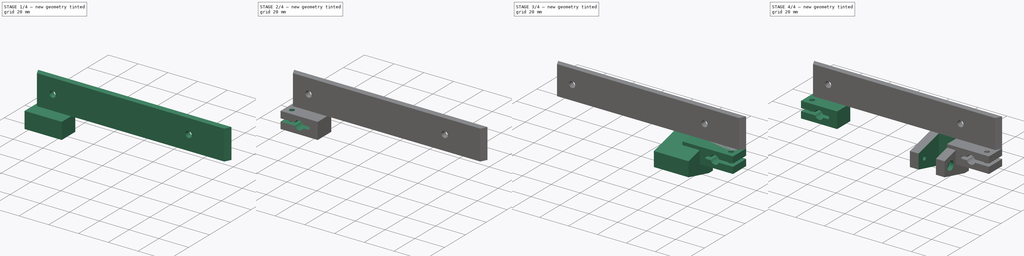
[diagram: build sequence overview — one tinted view per stage of 4, left to right]
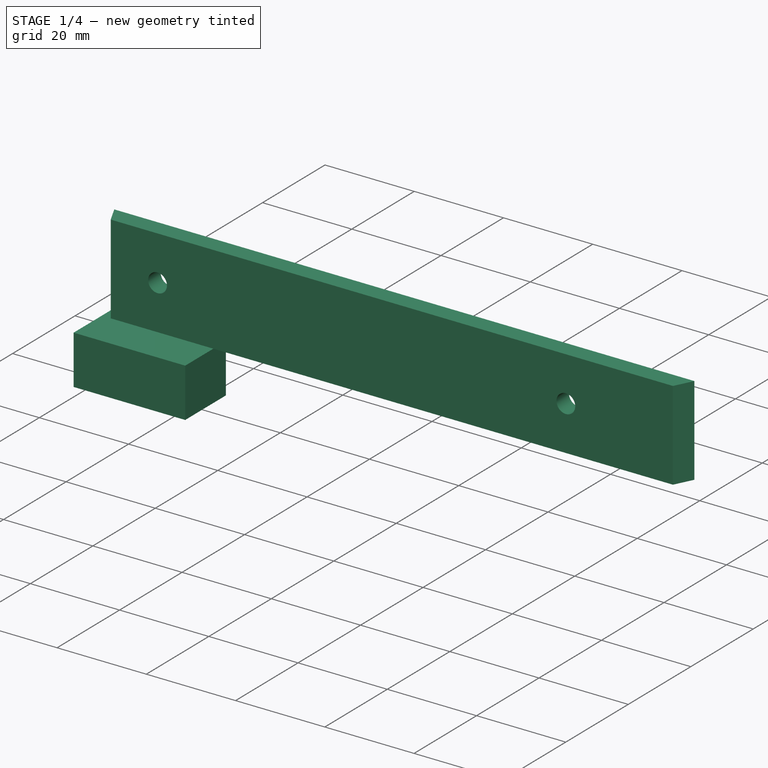
[diagram: stage 1 of 4 — iso view after this stage's code; geometry added in this stage tinted green]
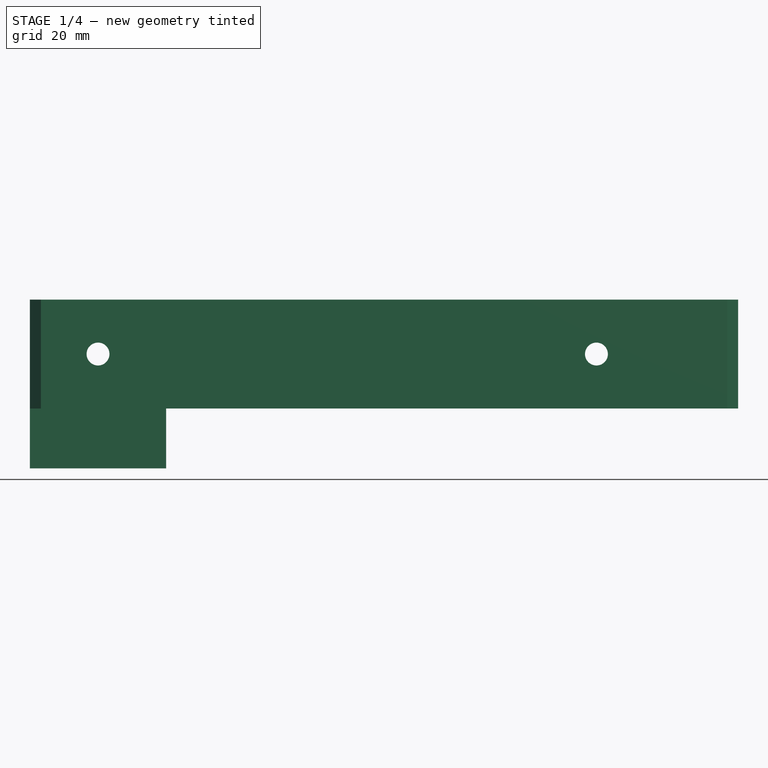
[diagram: stage 1 of 4 — front view after this stage's code; geometry added in this stage tinted green]
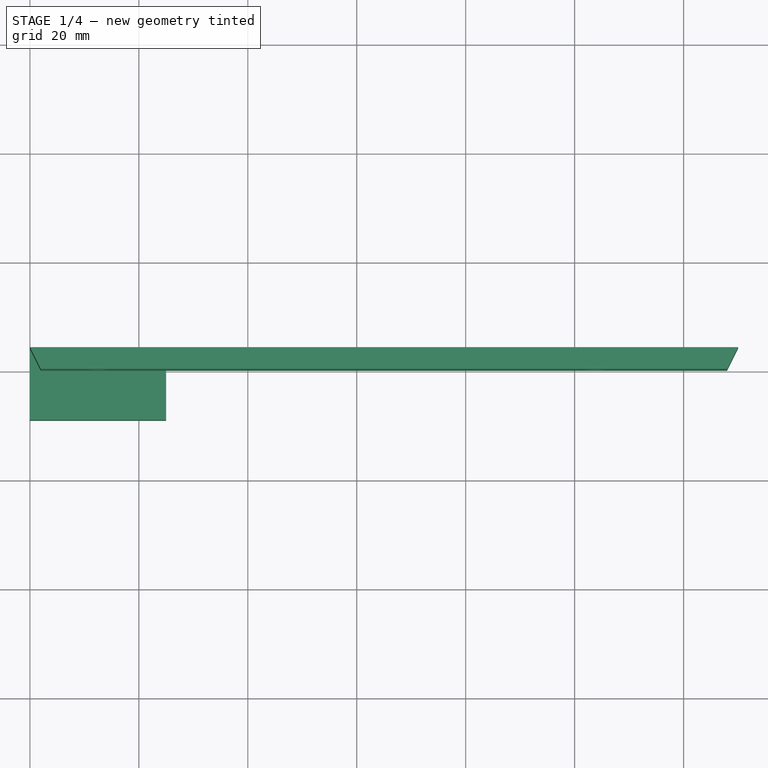
[diagram: stage 1 of 4 — top view after this stage's code; geometry added in this stage tinted green]
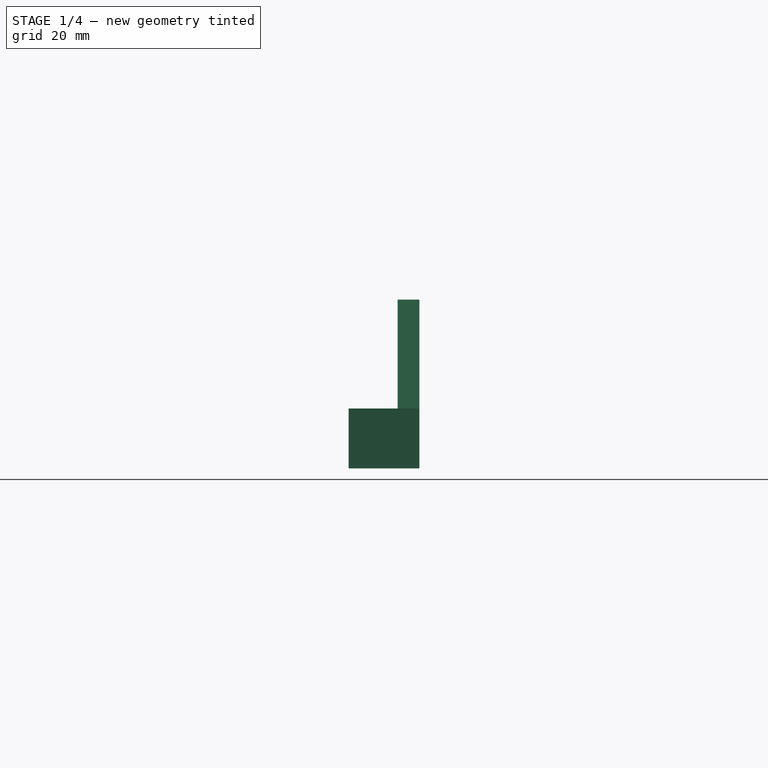
[diagram: stage 1 of 4 — right view after this stage's code; geometry added in this stage tinted green]
FCSTD DOCUMENT  (FreeCAD 0.14R3692 (Git))
Label: y-idler
License: CC-BY 3.0
LicenseURL: http://creativecommons.org/licenses/by/3.0/
objects: Sketcher::SketchObject×10, PartDesign::Pocket×8, Part::Feature×4, Part::Box×2, PartDesign::Pad×2, Part::Mirroring×1, Part::MultiFuse×1, App::DocumentObjectGroup×1
note: 38 computed .brp shape members not serialized (recipe doc carries the construction recipe); baked Part::Feature solids carry a one-line shape summary decoded from their .brp

FEATURE [Part::Box] Box  label="body-cube"
  Height = 20
  Length = 130
  Width = 4
FEATURE [Part::Box] Box001  label="smooth-rod-y-left-holder-cube"
  Height = 11
  Length = 25
  Placement = pos=(0,-9,-11) rot=(0,0,1;0rad)
  Width = 13
FEATURE [Sketcher::SketchObject] Sketch008  label="slot-front-top-screw-hole-sketch"
  Placement = pos=(0,0,0) rot=(1,0,0;1.5708rad)
  Support = -> Box [Face3]
  sketch-geometry (2):
    g0: Circle CenterX=12.5 CenterY=10 CenterZ=0 NormalX=0 NormalY=0 NormalZ=1 Radius=2.1
    g1: Circle CenterX=104 CenterY=10 CenterZ=0 NormalX=0 NormalY=0 NormalZ=1 Radius=2.1
  constraints (6):
    c: DistanceY(g-1,g0) = 10
    c: DistanceX(g-1,g0) = 12.5
    c: Radius(g0) = 2.1
    c: DistanceY(g-1,g1) = 10
    c: DistanceX(g-1,g1) = 104
    c: Radius(g1) = 2.1
FEATURE [PartDesign::Pocket] Pocket006  label="slot-front-top-screw-hole-pocket"
  Length = 4
  Sketch = -> Sketch008
  Type = 0
FEATURE [Sketcher::SketchObject] Sketch009  label="slot-front-top-chamfer-sketch"
  Placement = pos=(0,0,20) rot=(0,0,1;0rad)
  Support = -> Pocket006 [Face3]
  sketch-geometry (6):
    g0: LineSegment StartX=0 StartY=4 StartZ=0 EndX=2 EndY=0 EndZ=0
    g1: LineSegment StartX=2 StartY=0 StartZ=0 EndX=0 EndY=0 EndZ=0
    g2: LineSegment StartX=0 StartY=0 StartZ=0 EndX=0 EndY=4 EndZ=0
    g3: LineSegment StartX=128 StartY=0 StartZ=0 EndX=130 EndY=4 EndZ=0
    g4: LineSegment StartX=130 StartY=4 StartZ=0 EndX=130 EndY=0 EndZ=0
    g5: LineSegment StartX=130 StartY=0 StartZ=0 EndX=128 EndY=0 EndZ=0
  constraints (17):
    c: Coincident(g0,g1)
    c: Coincident(g1,g2)
    c: Coincident(g2,g0)
    c: Vertical(g2)
    c: Horizontal(g1)
    c: Coincident(g1,g-1)
    c: DistanceY(g2) = 4
    c: DistanceX(g1) = -2
    c: Coincident(g3,g4)
    c: Coincident(g4,g5)
    c: Coincident(g3,g5)
    c: Horizontal(g5)
    c: Vertical(g4)
    c: PointOnObject(g4,g-1)
    c: DistanceX(g-1,g4) = 130
    c: Equal(g5,g1)
    c: Equal(g2,g4)
FEATURE [PartDesign::Pocket] Pocket007  label="slot-front-top-chamfer-pocket"
  Length = 20
  Sketch = -> Sketch009
  Type = 0
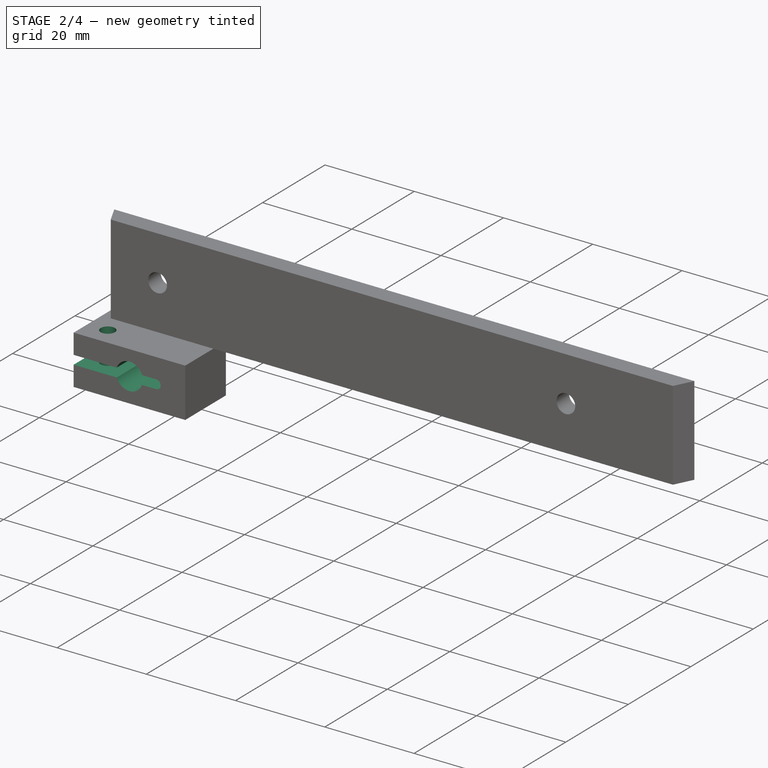
[diagram: stage 2 of 4 — iso view after this stage's code; geometry added in this stage tinted green]
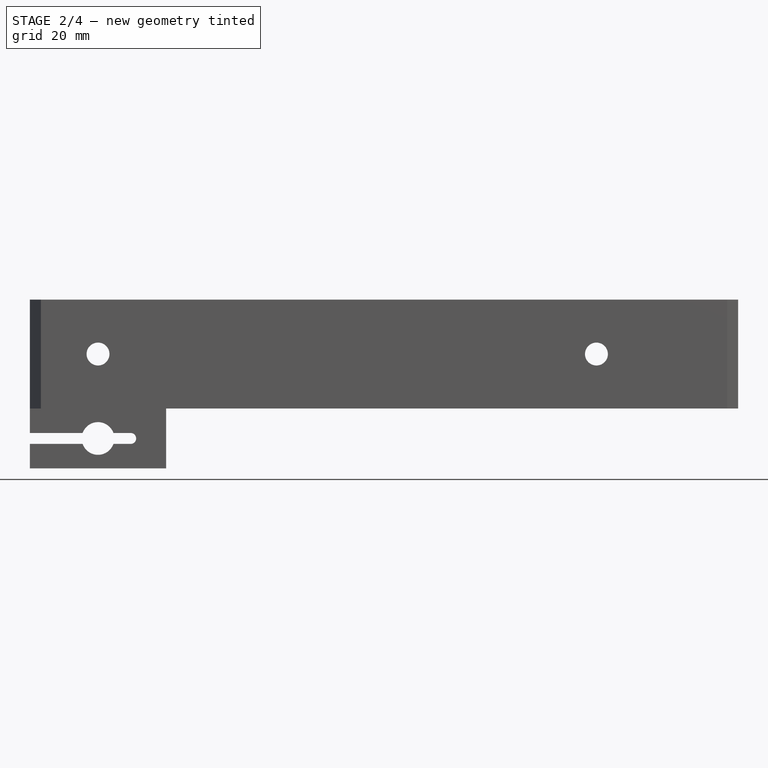
[diagram: stage 2 of 4 — front view after this stage's code; geometry added in this stage tinted green]
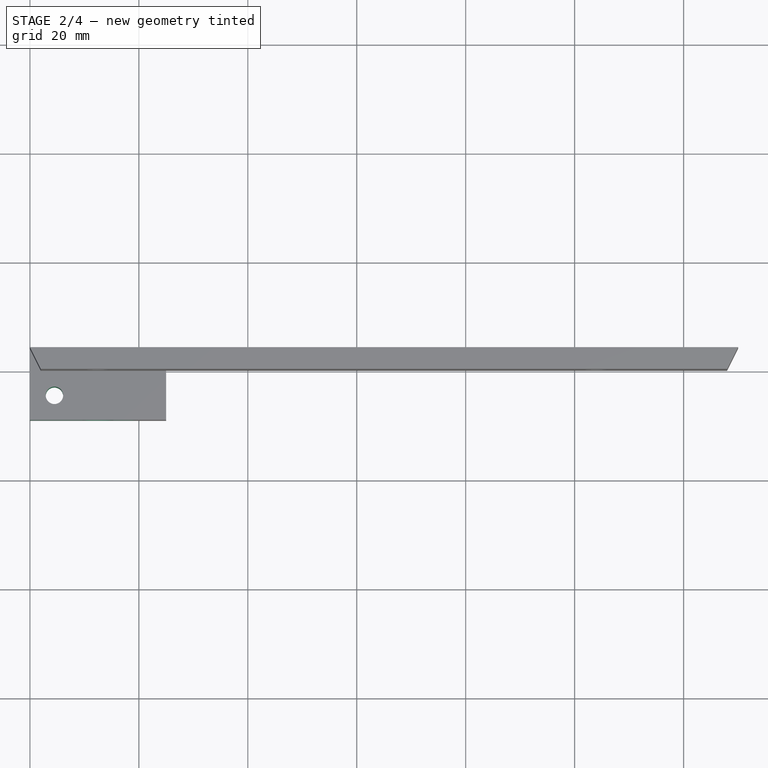
[diagram: stage 2 of 4 — top view after this stage's code; geometry added in this stage tinted green]
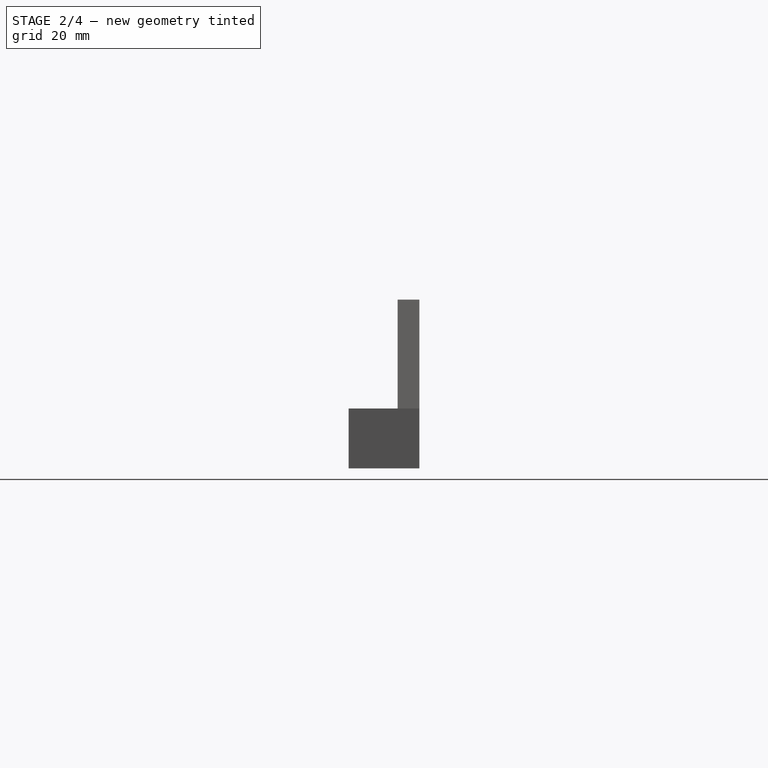
[diagram: stage 2 of 4 — right view after this stage's code; geometry added in this stage tinted green]
FEATURE [Sketcher::SketchObject] Sketch  label="smooth-rod-y-left-hole-sketch"
  Placement = pos=(0,-9,-11) rot=(1,0,0;1.5708rad)
  Support = -> Box001 [Face3]
  sketch-geometry (1):
    g0: Circle CenterX=12.5 CenterY=5.5 CenterZ=0 NormalX=0 NormalY=0 NormalZ=1 Radius=3
  constraints (3):
    c: Radius(g0) = 3
    c: DistanceX(g-1,g0) = 12.5
    c: DistanceY(g-1,g0) = 5.5
FEATURE [PartDesign::Pocket] Pocket  label="smooth-rod-y-left-hole-pocket"
  Length = 5
  Placement = pos=(0,-9,-11) rot=(0,0,1;0rad)
  Sketch = -> Sketch
  Type = 1
FEATURE [Sketcher::SketchObject] Sketch001  label="smooth-rod-y-left-groove-sketch"
  Placement = pos=(0,-9,-11) rot=(1,0,0;1.5708rad)
  Support = -> Pocket [Face2]
  sketch-geometry (4):
    g0: ArcOfCircle CenterX=0 CenterY=5.5 CenterZ=0 NormalX=0 NormalY=0 NormalZ=1 Radius=1 StartAngle=1.57081 EndAngle=4.71239
    g1: ArcOfCircle CenterX=18.5 CenterY=5.5 CenterZ=0 NormalX=0 NormalY=0 NormalZ=1 Radius=1 StartAngle=4.71239 EndAngle=7.85399
    g2: LineSegment StartX=-1.7816e-08 StartY=4.5 StartZ=0 EndX=18.5 EndY=4.5 EndZ=0
    g3: LineSegment StartX=-1.02577e-05 StartY=6.5 StartZ=0 EndX=18.5 EndY=6.5 EndZ=0
  constraints (14):
    c: Tangent(g0,g2)
    c: Tangent(g0,g3)
    c: Tangent(g1,g2)
    c: Tangent(g1,g3)
    c: Coincident(g0,g3)
    c: Coincident(g0,g2)
    c: Coincident(g2,g1)
    c: Coincident(g3,g1)
    c: Horizontal(g2)
    c: Equal(g0,g1)
    c: Radius(g1) = 1
    c: DistanceX(g2) = 18.5
    c: PointOnObject(g0,g-2)
    c: DistanceY(g-1,g0) = 5.5
FEATURE [PartDesign::Pocket] Pocket001  label="smooth-rod-y-left-groove-pocket"
  Length = 5
  Placement = pos=(0,-9,-11) rot=(0,0,1;0rad)
  Sketch = -> Sketch001
  Type = 1
FEATURE [Sketcher::SketchObject] Sketch002  label="smooth-rod-y-left-screw-hole-sketch"
  Placement = pos=(0,-9,0) rot=(0,0,1;0rad)
  Support = -> Pocket001 [Face1]
  sketch-geometry (1):
    g0: Circle CenterX=4.5 CenterY=4.5 CenterZ=0 NormalX=0 NormalY=0 NormalZ=1 Radius=1.6
  constraints (3):
    c: DistanceY(g-1,g0) = 4.5
    c: DistanceX(g-1,g0) = 4.5
    c: Radius(g0) = 1.6
FEATURE [PartDesign::Pocket] Pocket002  label="smooth-rod-y-left-screw-hole-pocket"
  Length = 5
  Placement = pos=(0,-9,-11) rot=(0,0,1;0rad)
  Sketch = -> Sketch002
  Type = 1
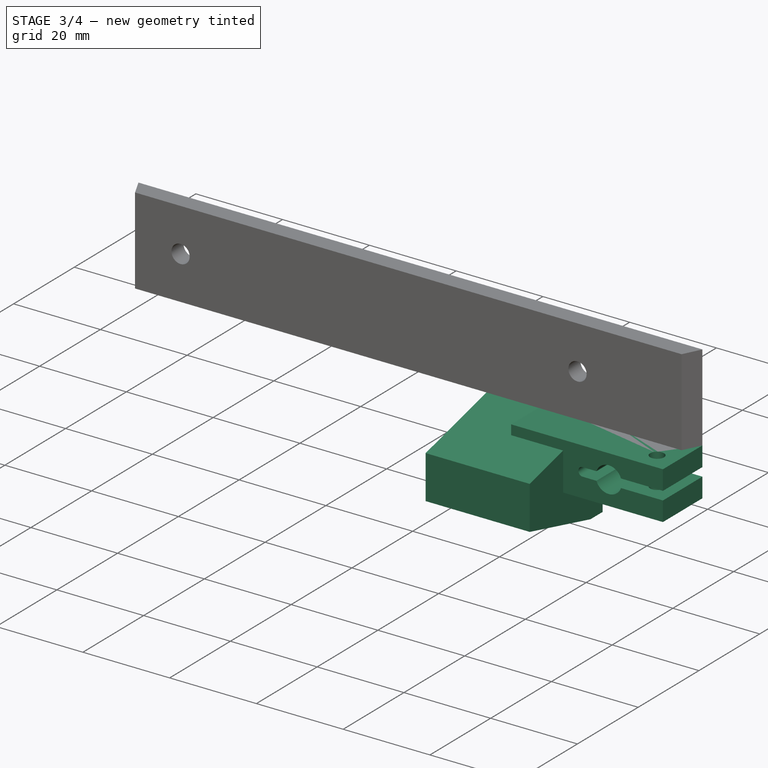
[diagram: stage 3 of 4 — iso view after this stage's code; geometry added in this stage tinted green]
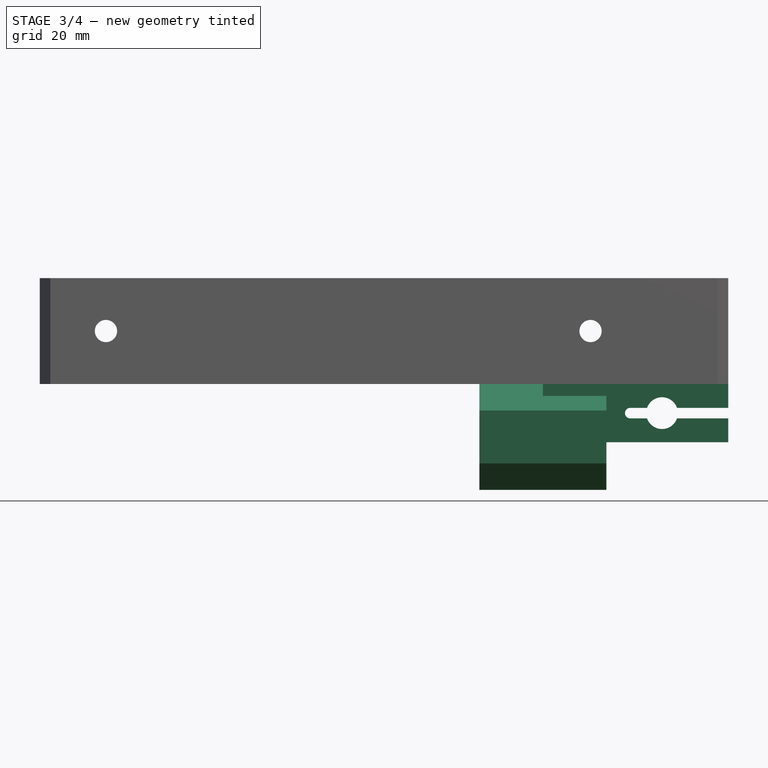
[diagram: stage 3 of 4 — front view after this stage's code; geometry added in this stage tinted green]
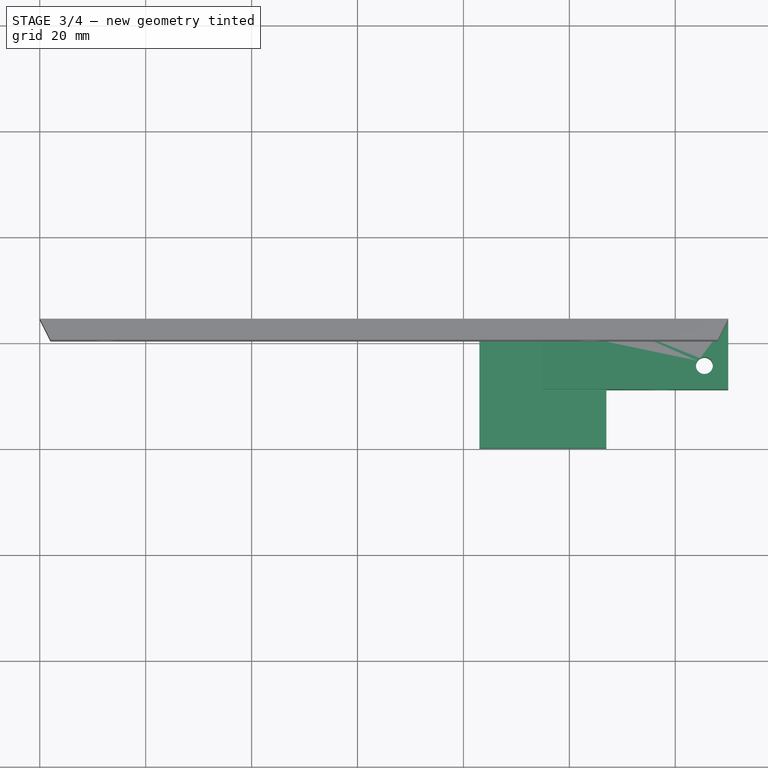
[diagram: stage 3 of 4 — top view after this stage's code; geometry added in this stage tinted green]
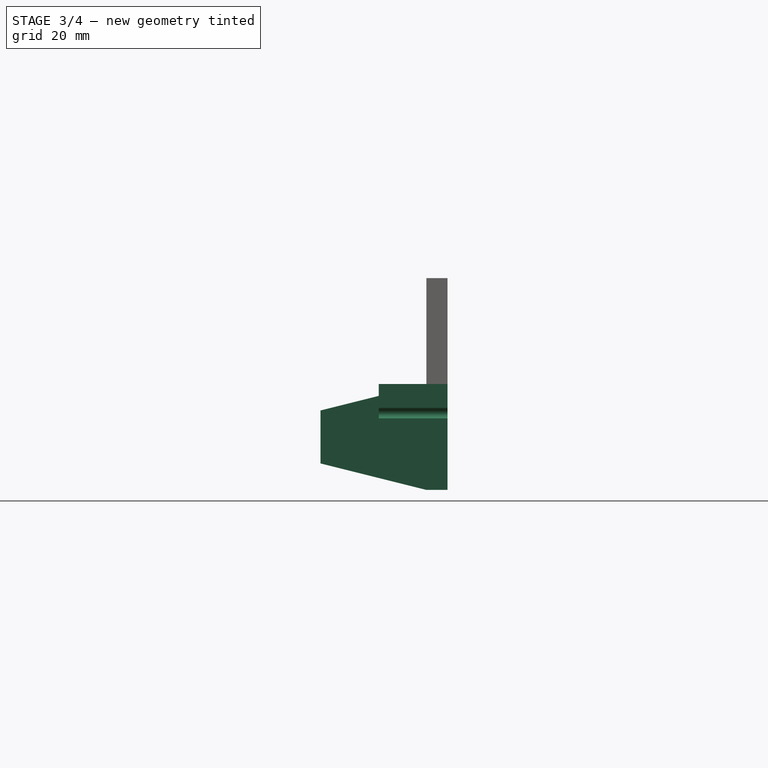
[diagram: stage 3 of 4 — right view after this stage's code; geometry added in this stage tinted green]
FEATURE [Part::Mirroring] Part__Mirroring  label="smooth-rod-y-right-holder"
  Base = (65,0,0)
  Normal = (1,0,0)
  Source = -> Pocket002
FEATURE [Sketcher::SketchObject] Sketch003  label="smooth-rod-y-right-holder-increase-sketch"
  Placement = pos=(105,0,0) rot=(0.57735,-0.57735,-0.57735;2.0944rad)
  Support = -> Part__Mirroring [Face6]
  sketch-geometry (4):
    g0: LineSegment StartX=-4 StartY=0 StartZ=0 EndX=9 EndY=0 EndZ=0
    g1: LineSegment StartX=9 StartY=0 StartZ=0 EndX=9 EndY=-11 EndZ=0
    g2: LineSegment StartX=9 StartY=-11 StartZ=0 EndX=-4 EndY=-11 EndZ=0
    g3: LineSegment StartX=-4 StartY=-11 StartZ=0 EndX=-4 EndY=0 EndZ=0
  constraints (12):
    c: Coincident(g0,g1)
    c: Coincident(g1,g2)
    c: Coincident(g2,g3)
    c: Coincident(g3,g0)
    c: Horizontal(g0)
    c: Horizontal(g2)
    c: Vertical(g1)
    c: Vertical(g3)
    c: DistanceY(g3) = 11
    c: DistanceX(g2) = -13
    c: PointOnObject(g-1,g0)
    c: DistanceX(g-1,g0) = -4
FEATURE [PartDesign::Pad] Pad  label="smooth-rod-y-right-holder-increase-pad"
  Length = 10
  Length2 = 100
  Sketch = -> Sketch003
  Type = 0
FEATURE [Sketcher::SketchObject] Sketch004  label="idler-sketch"
  Placement = pos=(95,0,0) rot=(0.57735,-0.57735,-0.57735;2.0944rad)
  Support = -> Pad [Face18]
  sketch-geometry (6):
    g0: LineSegment StartX=-4 StartY=0 StartZ=0 EndX=-4 EndY=-20 EndZ=0
    g1: LineSegment StartX=-4 StartY=-20 StartZ=0 EndX=0 EndY=-20 EndZ=0
    g2: LineSegment StartX=0 StartY=-20 StartZ=0 EndX=20 EndY=-15 EndZ=0
    g3: LineSegment StartX=20 StartY=-15 StartZ=0 EndX=20 EndY=-5 EndZ=0
    g4: LineSegment StartX=20 StartY=-5 StartZ=0 EndX=0 EndY=0 EndZ=0
    g5: LineSegment StartX=0 StartY=0 StartZ=0 EndX=-4 EndY=0 EndZ=0
  constraints (17):
    c: Coincident(g0,g1)
    c: Coincident(g1,g2)
    c: Coincident(g2,g3)
    c: Coincident(g3,g4)
    c: Coincident(g4,g5)
    c: Coincident(g0,g5)
    c: Horizontal(g5)
    c: Horizontal(g1)
    c: Vertical(g3)
    c: Vertical(g0)
    c: DistanceY(g3) = 10
    c: DistanceY(g0) = -20
    c: Equal(g4,g2)
    c: DistanceX(g-1,g3) = 20
    c: Coincident(g4,g-1)
    c: DistanceX(g1) = 4
    c: Equal(g5,g1)
FEATURE [PartDesign::Pad] Pad001  label="idler-pad"
  Length = 24
  Length2 = 100
  Midplane = true
  Sketch = -> Sketch004
  Type = 0
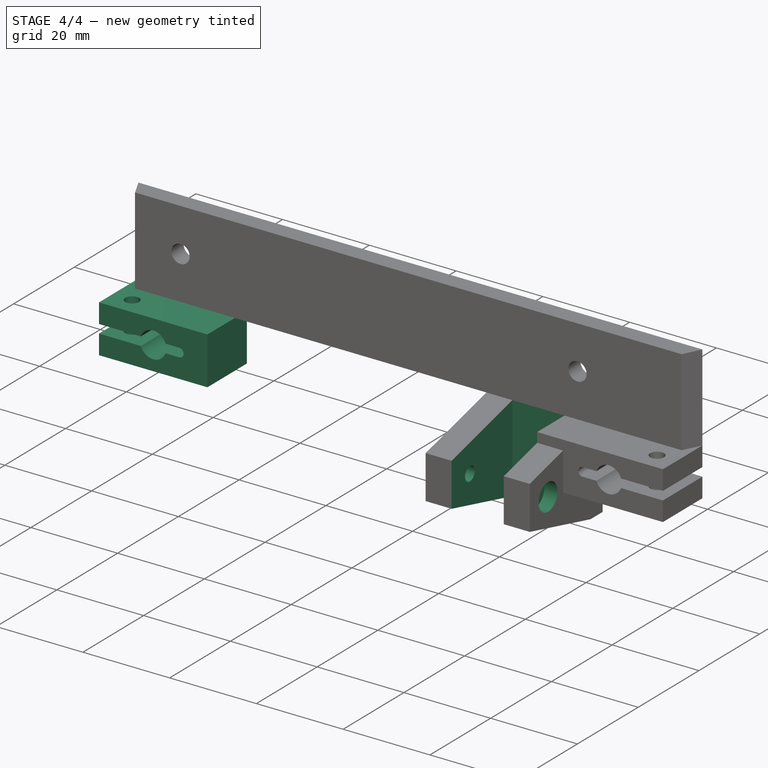
[diagram: stage 4 of 4 — iso view after this stage's code; geometry added in this stage tinted green]
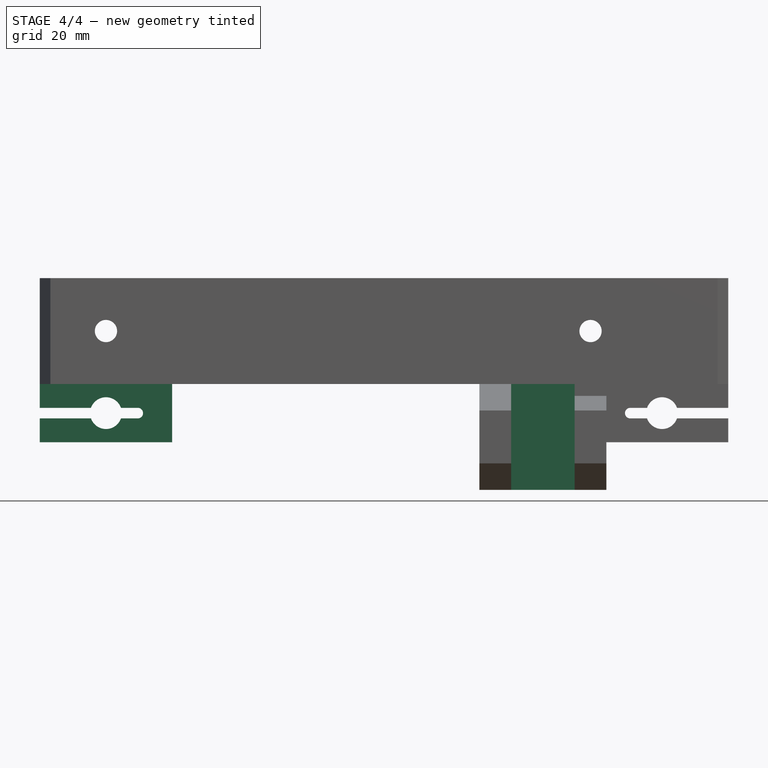
[diagram: stage 4 of 4 — front view after this stage's code; geometry added in this stage tinted green]
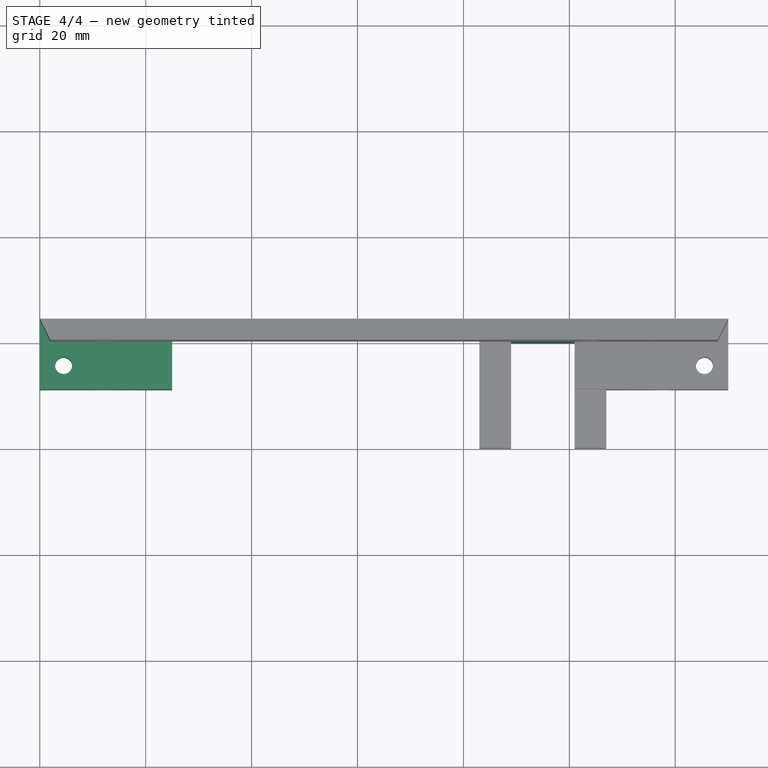
[diagram: stage 4 of 4 — top view after this stage's code; geometry added in this stage tinted green]
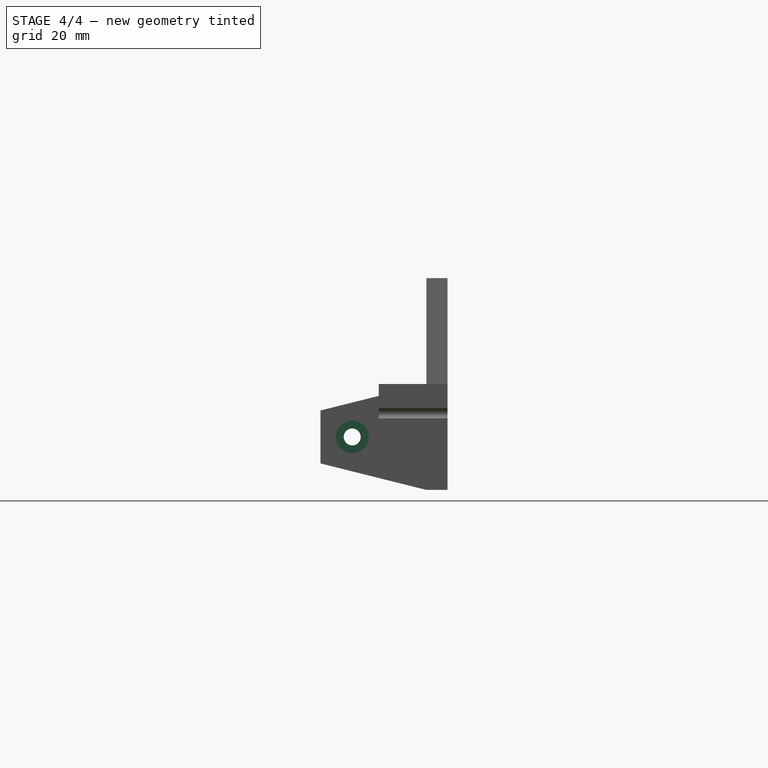
[diagram: stage 4 of 4 — right view after this stage's code; geometry added in this stage tinted green]
FEATURE [Sketcher::SketchObject] Sketch005  label="idler-groove-sketch"
  Placement = pos=(0,-20,0) rot=(1,0,0;1.5708rad)
  Support = -> Pad001 [Face26]
  sketch-geometry (4):
    g0: LineSegment StartX=89 StartY=0 StartZ=0 EndX=101 EndY=0 EndZ=0
    g1: LineSegment StartX=101 StartY=0 StartZ=0 EndX=101 EndY=-20 EndZ=0
    g2: LineSegment StartX=101 StartY=-20 StartZ=0 EndX=89 EndY=-20 EndZ=0
    g3: LineSegment StartX=89 StartY=-20 StartZ=0 EndX=89 EndY=0 EndZ=0
  constraints (12):
    c: Coincident(g0,g1)
    c: Coincident(g1,g2)
    c: Coincident(g2,g3)
    c: Coincident(g3,g0)
    c: Horizontal(g0)
    c: Horizontal(g2)
    c: Vertical(g1)
    c: Vertical(g3)
    c: PointOnObject(g0,g-1)
    c: DistanceX(g0) = 12
    c: DistanceX(g-1,g0) = 89
    c: DistanceY(g3) = 20
FEATURE [PartDesign::Pocket] Pocket003  label="idler-groove-pocket"
  Length = 20
  Sketch = -> Sketch005
  Type = 0
FEATURE [Sketcher::SketchObject] Sketch007  label="idler-screw-head-sketch"
  Placement = pos=(107,0,0) rot=(0.57735,0.57735,0.57735;2.0944rad)
  Support = -> Pocket003 [Face15]
  sketch-geometry (1):
    g0: Circle CenterX=-14 CenterY=-10 CenterZ=0 NormalX=0 NormalY=0 NormalZ=1 Radius=3.1
  constraints (3):
    c: Radius(g0) = 3.1
    c: DistanceX(g-1,g0) = -14
    c: DistanceY(g-1,g0) = -10
FEATURE [PartDesign::Pocket] Pocket005  label="idler-screw-head-pocket"
  Length = 3
  Sketch = -> Sketch007
  Type = 0
FEATURE [Sketcher::SketchObject] Sketch006  label="idler-screw-hole-sketch"
  Placement = pos=(104,0,0) rot=(0.57735,0.57735,0.57735;2.0944rad)
  Support = -> Pocket005 [Face31]
  sketch-geometry (1):
    g0: Circle CenterX=-14 CenterY=-10 CenterZ=0 NormalX=0 NormalY=0 NormalZ=1 Radius=1.6
  constraints (3):
    c: Radius(g0) = 1.6
    c: DistanceX(g-1,g0) = -14
    c: DistanceY(g-1,g0) = -10
FEATURE [PartDesign::Pocket] Pocket004  label="idler-screw-hole-pocket"
  Length = 21
  Sketch = -> Sketch006
  Type = 0
FEATURE [Part::MultiFuse] Fusion  label="body-smooth-rod-holder-idler-fusion"
  Shapes = -> [Pocket004,Pocket002,Pocket007]
FEATURE [Part::Feature] Fusion002  label="y-idler"
  shape: bbox 130 x 24 x 40 mm, 52 faces (baked)
FEATURE [Part::Feature] Part__Feature  label="extrusion-p20n6b-200-top-front"
  Placement = pos=(-35,14,10) rot=(0,1,0;1.5708rad)
  shape: bbox 200 x 20 x 20 mm, 154 faces (baked)
FEATURE [Part::Feature] Part__Feature001  label="smooth-rod-06-300-y-left"
  Placement = pos=(12.5,-296,-5.5) rot=(-1,0,0;1.5708rad)
  shape: bbox 6 x 300 x 6 mm, 3 faces (baked)
FEATURE [Part::Feature] Part__Feature002  label="smooth-rod-06-300-y-right"
  Placement = pos=(117.5,-296,-5.5) rot=(-1,0,0;1.5708rad)
  shape: bbox 6 x 300 x 6 mm, 3 faces (baked)
FEATURE [App::DocumentObjectGroup] Grupo  label="aux"
  Group = -> [Part__Feature,Part__Feature001,Part__Feature002]
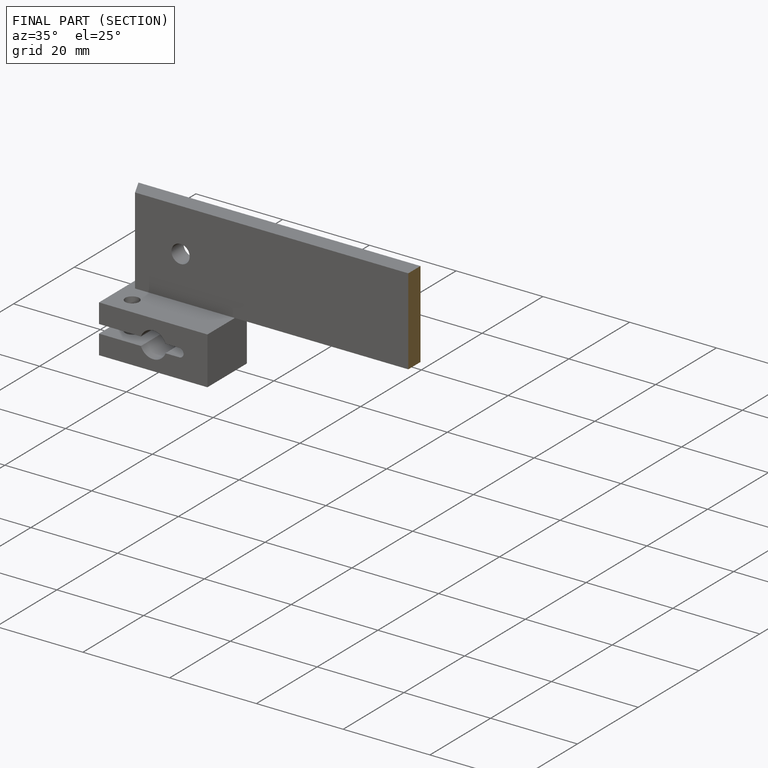
[diagram: finished part — half-section view (interior)]
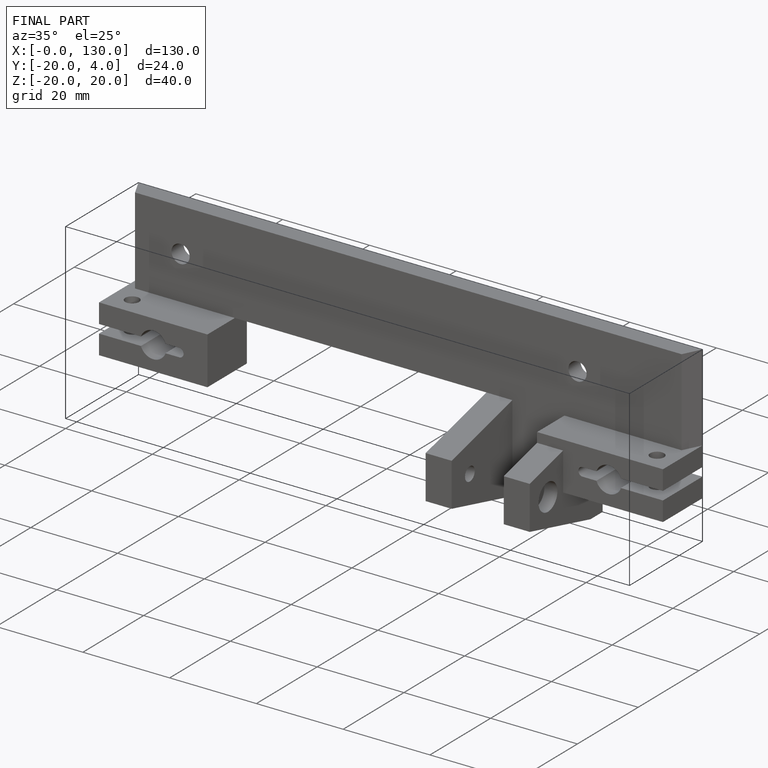
[diagram: finished part — iso view with bounding-box wireframe]
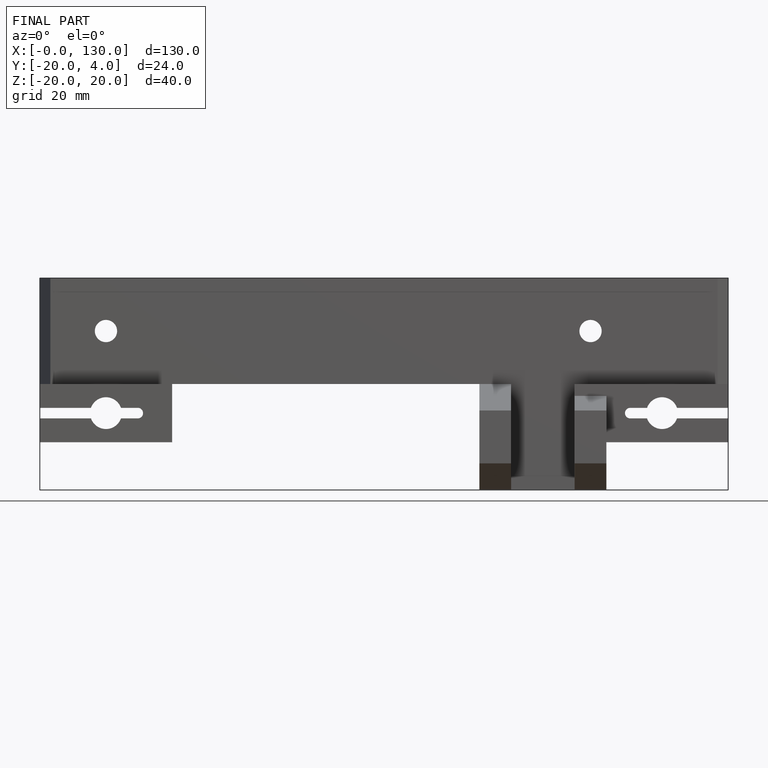
[diagram: finished part — front view with bounding-box wireframe]
